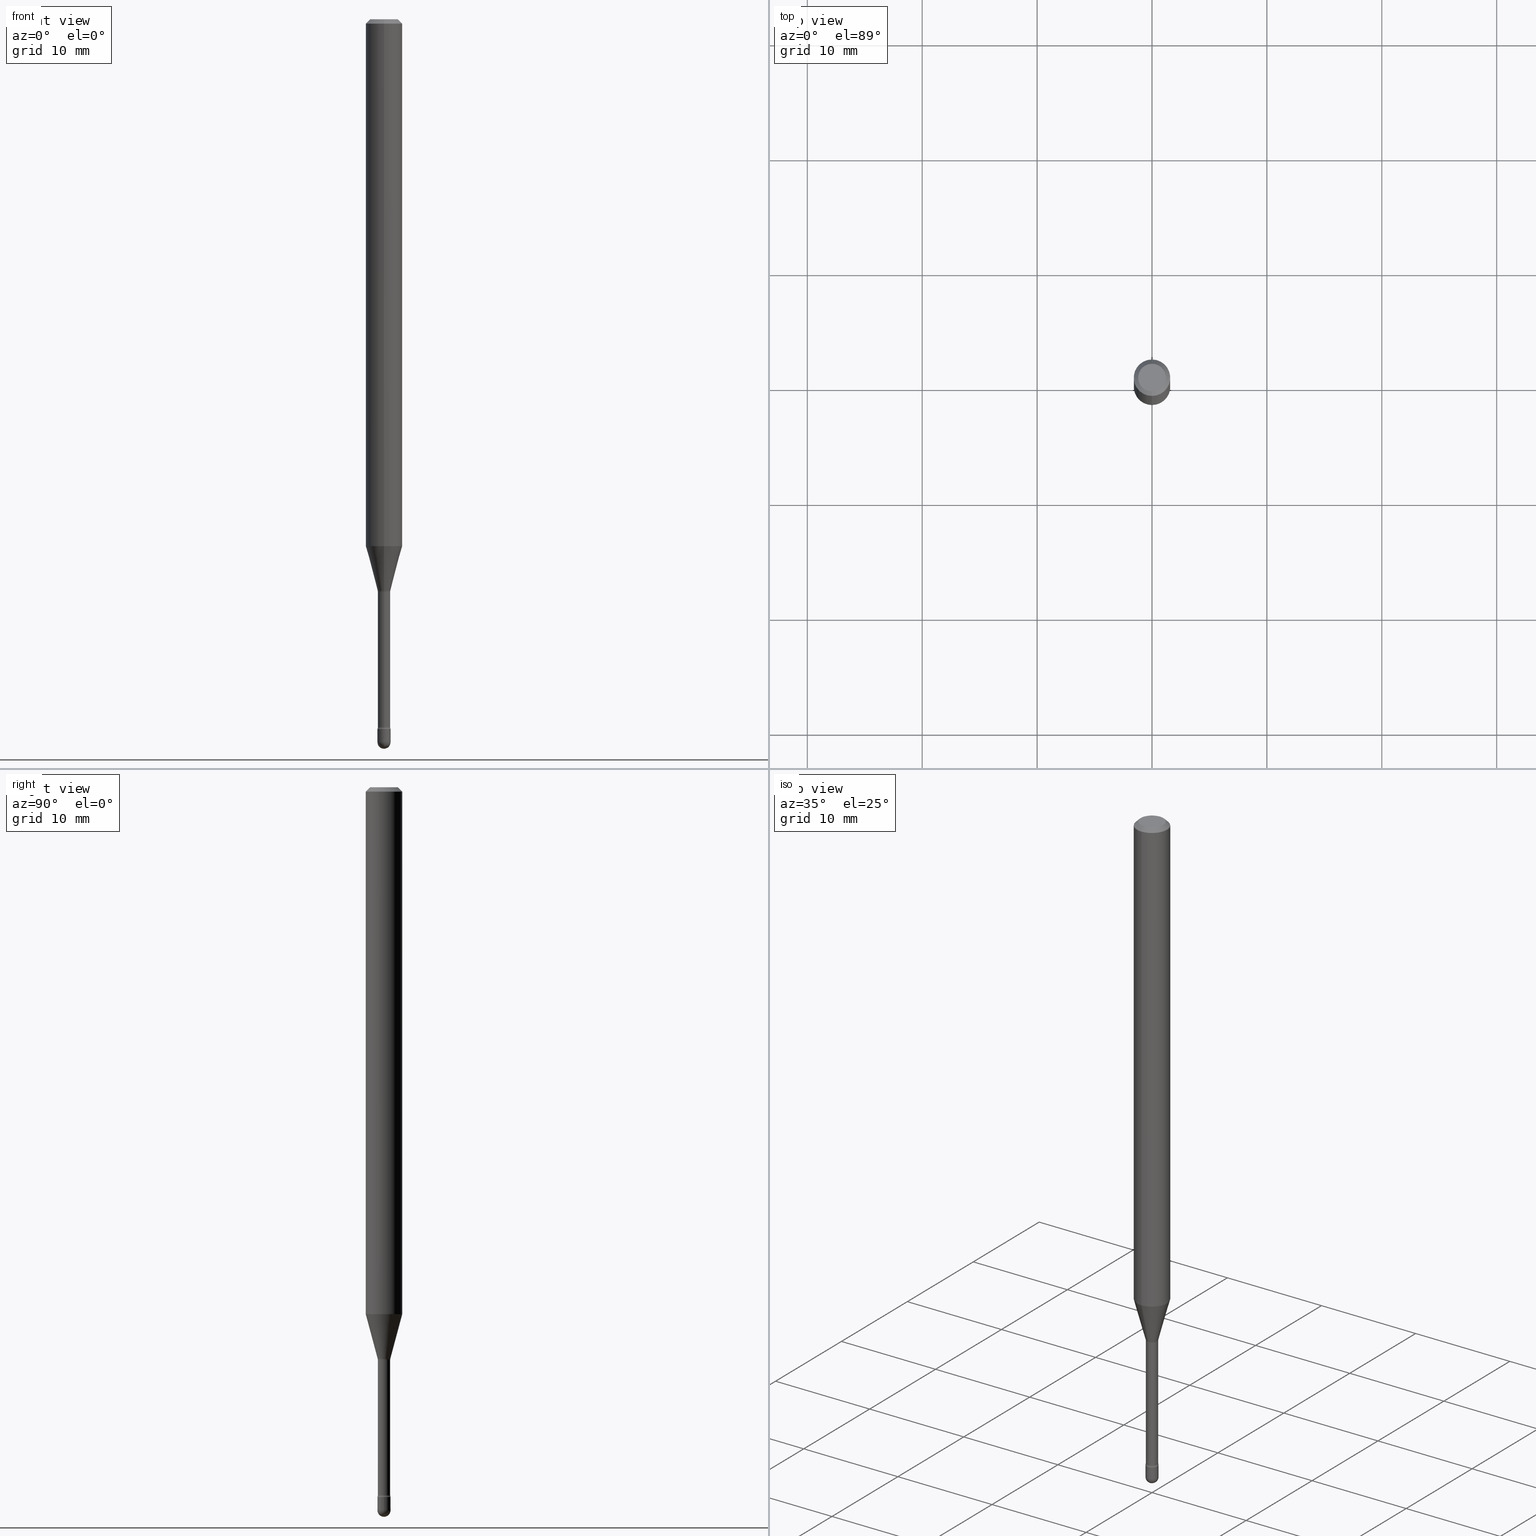
[diagram: canonical four-view strip — front | top / right | iso, engineering-drawing reading convention]
A machine part, canonical four-view strip (front | top / right | iso — engineering-drawing reading convention). The complete STEP part file that produces these views, byte-faithful:
ISO-10303-21;
HEADER;
FILE_DESCRIPTION (( 'STEP AP203' ),
    '1' );
FILE_NAME ('03894.STEP',
    '2024-04-09T21:00:28',
    ( '' ),
    ( '' ),
    'SwSTEP 2.0',
    'SolidWorks 2023',
    '' );
FILE_SCHEMA (( 'CONFIG_CONTROL_DESIGN' ));
ENDSEC;

DATA;
#1 = DIRECTION ( 'NONE',  ( 6.982962677686265922E-15, 1.000000000000000000, 0.000000000000000000 ) ) ;
#2 = LINE ( 'NONE', #167, #525 ) ;
#3 = CARTESIAN_POINT ( 'NONE',  ( 3.668137124916745339E-31, -5.237316644830958384E-17, -0.01500000000000008271 ) ) ;
#4 = ADVANCED_FACE ( 'NONE', ( #351 ), #124, .T. ) ;
#5 = EDGE_CURVE ( 'NONE', #511, #447, #478, .T. ) ;
#6 = CONICAL_SURFACE ( 'NONE', #393, 0.06250000000000000000, 0.7853981633974483900 ) ;
#7 = FACE_OUTER_BOUND ( 'NONE', #119, .T. ) ;
#8 = DIRECTION ( 'NONE',  ( -2.445424749944483382E-29, 3.491544429887286295E-15, 1.000000000000000000 ) ) ;
#9 = ORIENTED_EDGE ( 'NONE', *, *, #542, .F. ) ;
#10 = EDGE_LOOP ( 'NONE', ( #310, #257, #476, #229, #498 ) ) ;
#11 = FACE_OUTER_BOUND ( 'NONE', #507, .T. ) ;
#12 = ORIENTED_EDGE ( 'NONE', *, *, #373, .F. ) ;
#13 = PLANE ( 'NONE',  #526 ) ;
#14 = AXIS2_PLACEMENT_3D ( 'NONE', #313, #453, #543 ) ;
#15 = CC_DESIGN_APPROVAL ( #298, ( #250 ) ) ;
#16 =( CONVERSION_BASED_UNIT ( 'INCH', #104 ) LENGTH_UNIT ( ) NAMED_UNIT ( #459 ) );
#17 = VERTEX_POINT ( 'NONE', #528 ) ;
#18 = DATE_TIME_ROLE ( 'creation_date' ) ;
#19 = CARTESIAN_POINT ( 'NONE',  ( 1.571166602480017581E-16, 0.02249999999999136718, -2.477500000000000036 ) ) ;
#20 = VERTEX_POINT ( 'NONE', #402 ) ;
#21 = APPLICATION_PROTOCOL_DEFINITION ( 'international standard', 'config_control_design', 1994, #364 ) ;
#22 = DIRECTION ( 'NONE',  ( -2.445424749944483382E-29, 3.491544429887286295E-15, 1.000000000000000000 ) ) ;
#23 = AXIS2_PLACEMENT_3D ( 'NONE', #25, #300, #123 ) ;
#24 = APPROVAL ( #105, 'UNSPECIFIED' ) ;
#25 = CARTESIAN_POINT ( 'NONE',  ( 6.058648967323676636E-29, -8.650145016983893338E-15, -2.477500000000000036 ) ) ;
#26 = ORIENTED_EDGE ( 'NONE', *, *, #234, .T. ) ;
#27 = AXIS2_PLACEMENT_3D ( 'NONE', #359, #32, #85 ) ;
#28 = AXIS2_PLACEMENT_3D ( 'NONE', #405, #163, #113 ) ;
#29 = APPROVAL_PERSON_ORGANIZATION ( #554, #251, #424 ) ;
#30 = LINE ( 'NONE', #527, #565 ) ;
#31 = CARTESIAN_POINT ( 'NONE',  ( 2.990003359772577671E-16, 0.02166111260565713875, -1.958092501787273232 ) ) ;
#32 = DIRECTION ( 'NONE',  ( -2.445424749944483382E-29, 3.491544429887286295E-15, 1.000000000000000000 ) ) ;
#33 = DIRECTION ( 'NONE',  ( -6.982962677686266711E-15, -1.000000000000000000, 3.491544429887286295E-15 ) ) ;
#34 = CC_DESIGN_PERSON_AND_ORGANIZATION_ASSIGNMENT ( #473, #505, ( #250 ) ) ;
#35 = CARTESIAN_POINT ( 'NONE',  ( 6.058648967323676636E-29, -8.650145016983893338E-15, -2.477500000000000036 ) ) ;
#36 = DIRECTION ( 'NONE',  ( -1.807323732225326195E-15, -0.2588190451025176309, 0.9659258262890690894 ) ) ;
#37 = ORIENTED_EDGE ( 'NONE', *, *, #477, .T. ) ;
#38 = CARTESIAN_POINT ( 'NONE',  ( -4.364351673553916201E-16, -0.06250000000000000000, 6.962949257592015306E-16 ) ) ;
#39 = CARTESIAN_POINT ( 'NONE',  ( 4.797948141264463506E-29, -6.850198357710643082E-15, -1.961974787463811154 ) ) ;
#40 = CARTESIAN_POINT ( 'NONE',  ( -1.476896606330055594E-16, -0.02115000000000851962, -2.425780876267511932 ) ) ;
#41 = CARTESIAN_POINT ( 'NONE',  ( 4.788367866551310556E-29, -6.836766967819414724E-15, -1.958092501787273232 ) ) ;
#42 = ORIENTED_EDGE ( 'NONE', *, *, #443, .F. ) ;
#43 = CIRCLE ( 'NONE', #470, 0.01500000000000002373 ) ;
#44 = ORIENTED_EDGE ( 'NONE', *, *, #152, .F. ) ;
#45 = DIRECTION ( 'NONE',  ( -6.982962677686265922E-15, -1.000000000000000000, 3.491544429887285901E-15 ) ) ;
#46 = EDGE_CURVE ( 'NONE', #17, #363, #2, .T. ) ;
#47 = ORIENTED_EDGE ( 'NONE', *, *, #134, .T. ) ;
#48 = DIRECTION ( 'NONE',  ( 1.000000000000000000, -6.982962677686269866E-15, 0.000000000000000000 ) ) ;
#49 = EDGE_LOOP ( 'NONE', ( #125, #426, #497, #212, #376 ) ) ;
#50 = DIRECTION ( 'NONE',  ( 2.445424749944483382E-29, -3.491544429887286295E-15, -1.000000000000000000 ) ) ;
#51 = CARTESIAN_POINT ( 'NONE',  ( 0.000000000000000000, 0.000000000000000000, 0.000000000000000000 ) ) ;
#52 = DIRECTION ( 'NONE',  ( 1.000000000000000000, -6.982962677686266711E-15, 4.876176775795935793E-29 ) ) ;
#53 = AXIS2_PLACEMENT_3D ( 'NONE', #242, #439, #193 ) ;
#54 = APPROVAL_PERSON_ORGANIZATION ( #144, #24, #467 ) ;
#55 = ORIENTED_EDGE ( 'NONE', *, *, #216, .T. ) ;
#56 = CC_DESIGN_PERSON_AND_ORGANIZATION_ASSIGNMENT ( #336, #60, ( #231 ) ) ;
#57 = CARTESIAN_POINT ( 'NONE',  ( 6.058648967323676636E-29, -8.650145016983893338E-15, -2.477500000000000036 ) ) ;
#58 = EDGE_CURVE ( 'NONE', #20, #369, #88, .T. ) ;
#59 = EDGE_CURVE ( 'NONE', #69, #309, #293, .T. ) ;
#60 = PERSON_AND_ORGANIZATION_ROLE ( 'creator' ) ;
#61 = FACE_OUTER_BOUND ( 'NONE', #517, .T. ) ;
#62 = AXIS2_PLACEMENT_3D ( 'NONE', #425, #431, #218 ) ;
#63 = ADVANCED_FACE ( 'NONE', ( #7 ), #127, .T. ) ;
#64 = DIRECTION ( 'NONE',  ( -6.982962677686265922E-15, -1.000000000000000000, 3.491544429887285901E-15 ) ) ;
#65 = EDGE_LOOP ( 'NONE', ( #161, #423, #344, #258 ) ) ;
#66 = DIRECTION ( 'NONE',  ( -2.445424749944483382E-29, 3.491544429887286295E-15, 1.000000000000000000 ) ) ;
#67 = CALENDAR_DATE ( 2024, 9, 4 ) ;
#68 = ADVANCED_FACE ( 'NONE', ( #172 ), #131, .T. ) ;
#69 = VERTEX_POINT ( 'NONE', #292 ) ;
#70 = FACE_OUTER_BOUND ( 'NONE', #264, .T. ) ;
#71 = AXIS2_PLACEMENT_3D ( 'NONE', #384, #355, #306 ) ;
#72 = CC_DESIGN_APPROVAL ( #251, ( #231 ) ) ;
#73 = DIRECTION ( 'NONE',  ( -2.445424749944483382E-29, 3.491544429887286295E-15, 1.000000000000000000 ) ) ;
#74 = EDGE_CURVE ( 'NONE', #432, #363, #112, .T. ) ;
#75 = LINE ( 'NONE', #81, #557 ) ;
#76 = CARTESIAN_POINT ( 'NONE',  ( -1.512587408824631926E-16, -0.02166111260567081531, -1.958092501787273232 ) ) ;
#77 = DIRECTION ( 'NONE',  ( -6.982962677686266711E-15, -1.000000000000000000, 0.000000000000000000 ) ) ;
#78 = CIRCLE ( 'NONE', #122, 0.04749999999999999362 ) ;
#79 = FACE_OUTER_BOUND ( 'NONE', #249, .T. ) ;
#80 = DIRECTION ( 'NONE',  ( 6.982962677686265922E-15, 1.000000000000000000, -3.483106191921935554E-15 ) ) ;
#81 = CARTESIAN_POINT ( 'NONE',  ( -4.287811248607203282E-16, -0.06250000000000005551, -0.01499999999999986587 ) ) ;
#82 = DIRECTION ( 'NONE',  ( -2.445424749944483382E-29, 3.491544429887286295E-15, 1.000000000000000000 ) ) ;
#83 = EDGE_LOOP ( 'NONE', ( #9, #100, #256, #261 ) ) ;
#84 = COORDINATED_UNIVERSAL_TIME_OFFSET ( 5, 0, .BEHIND. ) ;
#85 = DIRECTION ( 'NONE',  ( -6.982962677686265922E-15, -1.000000000000000000, 3.491544429887286690E-15 ) ) ;
#86 = EDGE_CURVE ( 'NONE', #111, #69, #30, .T. ) ;
#87 = ORIENTED_EDGE ( 'NONE', *, *, #237, .T. ) ;
#88 = CIRCLE ( 'NONE', #428, 0.02114999999999999866 ) ;
#89 = CIRCLE ( 'NONE', #541, 0.01500000000000003240 ) ;
#90 = AXIS2_PLACEMENT_3D ( 'NONE', #471, #327, #52 ) ;
#91 = DIRECTION ( 'NONE',  ( -2.445424749944483382E-29, 3.491544429887286295E-15, 1.000000000000000000 ) ) ;
#92 = EDGE_LOOP ( 'NONE', ( #148, #87, #495, #42 ) ) ;
#93 = DIRECTION ( 'NONE',  ( -6.982962677686265922E-15, -1.000000000000000000, 3.491544429887285901E-15 ) ) ;
#94 = EDGE_LOOP ( 'NONE', ( #198, #26, #246, #318 ) ) ;
#95 = ORIENTED_EDGE ( 'NONE', *, *, #234, .F. ) ;
#96 = CONICAL_SURFACE ( 'NONE', #436, 0.02166111260566397703, 0.2617993877991496854 ) ;
#97 = EDGE_CURVE ( 'NONE', #136, #17, #135, .T. ) ;
#98 = PRODUCT_DEFINITION_SHAPE ( 'NONE', 'NONE',  #231 ) ;
#99 = DIRECTION ( 'NONE',  ( -6.982962677686265133E-15, -1.000000000000000000, 0.000000000000000000 ) ) ;
#100 = ORIENTED_EDGE ( 'NONE', *, *, #152, .T. ) ;
#101 = CARTESIAN_POINT ( 'NONE',  ( 4.788367866551310556E-29, -6.836766967819414724E-15, -1.958092501787273232 ) ) ;
#102 = CALENDAR_DATE ( 2024, 9, 4 ) ;
#103 = EDGE_CURVE ( 'NONE', #511, #20, #43, .T. ) ;
#104 = LENGTH_MEASURE_WITH_UNIT ( LENGTH_MEASURE( 0.02539999999999999897 ), #380 );
#105 = APPROVAL_STATUS ( 'not_yet_approved' ) ;
#106 = CIRCLE ( 'NONE', #219, 0.06250000000000000000 ) ;
#107 = AXIS2_PLACEMENT_3D ( 'NONE', #182, #236, #331 ) ;
#108 = DIRECTION ( 'NONE',  ( -2.445468806185136597E-29, 3.491481338843145583E-15, 1.000000000000000000 ) ) ;
#109 = DATE_AND_TIME ( #520, #396 ) ;
#110 = DIRECTION ( 'NONE',  ( -2.445424749944483382E-29, 3.491544429887286295E-15, 1.000000000000000000 ) ) ;
#111 = VERTEX_POINT ( 'NONE', #486 ) ;
#112 = LINE ( 'NONE', #401, #365 ) ;
#113 = DIRECTION ( 'NONE',  ( 1.000000000000000000, -6.982962677686266711E-15, 4.876176775795935793E-29 ) ) ;
#114 = ORIENTED_EDGE ( 'NONE', *, *, #422, .T. ) ;
#115 = DIRECTION ( 'NONE',  ( 1.000000000000000000, -6.982962677686269866E-15, 0.000000000000000000 ) ) ;
#116 = CARTESIAN_POINT ( 'NONE',  ( 4.797861704031071659E-29, -6.850322140748562007E-15, -1.961974787463811154 ) ) ;
#117 = CARTESIAN_POINT ( 'NONE',  ( 1.502797886133206648E-16, 0.02114999999999314997, -1.961974787463811154 ) ) ;
#118 = CARTESIAN_POINT ( 'NONE',  ( -1.476896606330647239E-16, -0.02115000000000002642, 5.519195635833622872E-16 ) ) ;
#119 = EDGE_LOOP ( 'NONE', ( #114, #388, #504, #323 ) ) ;
#120 = CC_DESIGN_PERSON_AND_ORGANIZATION_ASSIGNMENT ( #330, #146, ( #409 ) ) ;
#121 = DATE_AND_TIME ( #153, #419 ) ;
#122 = AXIS2_PLACEMENT_3D ( 'NONE', #151, #8, #33 ) ;
#123 = DIRECTION ( 'NONE',  ( -7.105427357600999492E-15, -1.000000000000000000, 0.000000000000000000 ) ) ;
#124 = CYLINDRICAL_SURFACE ( 'NONE', #27, 0.06250000000000000000 ) ;
#125 = ORIENTED_EDGE ( 'NONE', *, *, #547, .T. ) ;
#126 = DIRECTION ( 'NONE',  ( 2.445424749944483101E-29, -3.491544429887286295E-15, -1.000000000000000000 ) ) ;
#127 = CYLINDRICAL_SURFACE ( 'NONE', #564, 0.02115000000000002642 ) ;
#128 = CC_DESIGN_DATE_AND_TIME_ASSIGNMENT ( #149, #18, ( #231 ) ) ;
#129 = ORIENTED_EDGE ( 'NONE', *, *, #542, .T. ) ;
#130 = FACE_OUTER_BOUND ( 'NONE', #353, .T. ) ;
#131 = CYLINDRICAL_SURFACE ( 'NONE', #247, 0.02115000000000002642 ) ;
#132 = ORIENTED_EDGE ( 'NONE', *, *, #216, .F. ) ;
#133 = DIRECTION ( 'NONE',  ( 6.982962677686265922E-15, 1.000000000000000000, 0.000000000000000000 ) ) ;
#134 = EDGE_CURVE ( 'NONE', #363, #277, #106, .T. ) ;
#135 = CIRCLE ( 'NONE', #269, 0.06250000000000000000 ) ;
#136 = VERTEX_POINT ( 'NONE', #392 ) ;
#137 = EDGE_CURVE ( 'NONE', #461, #277, #75, .T. ) ;
#138 = ORIENTED_EDGE ( 'NONE', *, *, #165, .F. ) ;
#139 = AXIS2_PLACEMENT_3D ( 'NONE', #252, #450, #133 ) ;
#140 = CARTESIAN_POINT ( 'NONE',  ( 5.947272991864984194E-29, -8.491436053485880598E-15, -2.432000000000000384 ) ) ;
#141 = EDGE_CURVE ( 'NONE', #395, #358, #444, .T. ) ;
#142 = APPLICATION_PROTOCOL_DEFINITION ( 'international standard', 'config_control_design', 1994, #155 ) ;
#143 = CARTESIAN_POINT ( 'NONE',  ( 5.932064592766590079E-29, -8.469721706658931478E-15, -2.425780876267511932 ) ) ;
#144 = PERSON_AND_ORGANIZATION ( #515, #534 ) ;
#145 = DIRECTION ( 'NONE',  ( -6.982962677686265133E-15, -1.000000000000000000, 0.000000000000000000 ) ) ;
#146 = PERSON_AND_ORGANIZATION_ROLE ( 'creator' ) ;
#147 = DATE_AND_TIME ( #102, #209 ) ;
#148 = ORIENTED_EDGE ( 'NONE', *, *, #5, .T. ) ;
#149 = DATE_AND_TIME ( #374, #271 ) ;
#150 = ORIENTED_EDGE ( 'NONE', *, *, #477, .F. ) ;
#151 = CARTESIAN_POINT ( 'NONE',  ( 2.023232495864555534E-45, -2.889346375227927502E-31, -8.274403524694864429E-17 ) ) ;
#152 = EDGE_CURVE ( 'NONE', #361, #312, #207, .T. ) ;
#153 = CALENDAR_DATE ( 2024, 9, 4 ) ;
#154 = CARTESIAN_POINT ( 'NONE',  ( 5.947272991864984194E-29, -8.491436053485880598E-15, -2.432000000000000384 ) ) ;
#155 = APPLICATION_CONTEXT ( 'configuration controlled 3d designs of mechanical parts and assemblies' ) ;
#156 = PRODUCT_RELATED_PRODUCT_CATEGORY ( 'detail', '', ( #510 ) ) ;
#157 = DIRECTION ( 'NONE',  ( -6.982962677686265133E-15, -1.000000000000000000, 0.000000000000000000 ) ) ;
#158 = AXIS2_PLACEMENT_3D ( 'NONE', #454, #254, #407 ) ;
#159 = VECTOR ( 'NONE', #245, 39.37007874015748143 ) ;
#160 = CARTESIAN_POINT ( 'NONE',  ( 2.568611989773359353E-16, 0.03614999999999159164, -2.425780876267511932 ) ) ;
#161 = ORIENTED_EDGE ( 'NONE', *, *, #46, .F. ) ;
#162 = COORDINATED_UNIVERSAL_TIME_OFFSET ( 5, 0, .BEHIND. ) ;
#163 = DIRECTION ( 'NONE',  ( -2.445468806185136597E-29, 3.491481338843145583E-15, 1.000000000000000000 ) ) ;
#164 = DIRECTION ( 'NONE',  ( -2.445468806185136877E-29, 3.491481338843145188E-15, 1.000000000000000000 ) ) ;
#165 = EDGE_CURVE ( 'NONE', #536, #341, #559, .T. ) ;
#166 = SPHERICAL_SURFACE ( 'NONE', #377, 0.02250000000000005121 ) ;
#167 = CARTESIAN_POINT ( 'NONE',  ( 4.440892098500625669E-16, 0.06250000000000000000, 2.598518720232906451E-16 ) ) ;
#168 = CIRCLE ( 'NONE', #259, 0.02249999999999999570 ) ;
#169 = DIRECTION ( 'NONE',  ( -2.445424749944483382E-29, 3.491544429887286295E-15, 1.000000000000000000 ) ) ;
#170 = DIRECTION ( 'NONE',  ( 2.445424749944483382E-29, -3.491544429887286295E-15, -1.000000000000000000 ) ) ;
#171 = CARTESIAN_POINT ( 'NONE',  ( 5.932171463552647132E-29, -8.469568661610591604E-15, -2.425780876267511932 ) ) ;
#172 = FACE_OUTER_BOUND ( 'NONE', #204, .T. ) ;
#173 = ORIENTED_EDGE ( 'NONE', *, *, #103, .T. ) ;
#174 = CARTESIAN_POINT ( 'NONE',  ( -4.364351673553912750E-16, -0.06250000000000005551, -0.01499999999999986587 ) ) ;
#175 = CIRCLE ( 'NONE', #337, 0.06250000000000000000 ) ;
#176 = ADVANCED_FACE ( 'NONE', ( #494 ), #253, .T. ) ;
#177 = SPHERICAL_SURFACE ( 'NONE', #139, 0.02250000000000005121 ) ;
#178 = APPROVAL_STATUS ( 'not_yet_approved' ) ;
#179 = ORIENTED_EDGE ( 'NONE', *, *, #58, .T. ) ;
#180 = CARTESIAN_POINT ( 'NONE',  ( 4.788367866551310556E-29, -6.836766967819414724E-15, -1.958092501787273232 ) ) ;
#181 =( NAMED_UNIT ( * ) PLANE_ANGLE_UNIT ( ) SI_UNIT ( $, .RADIAN. ) );
#182 = CARTESIAN_POINT ( 'NONE',  ( -1.169113584055446105E-44, 1.669184350826100908E-30, 4.780733988912460139E-16 ) ) ;
#183 = EDGE_CURVE ( 'NONE', #214, #20, #530, .T. ) ;
#184 = APPROVAL_DATE_TIME ( #281, #24 ) ;
#185 = AXIS2_PLACEMENT_3D ( 'NONE', #35, #197, #115 ) ;
#186 = FACE_OUTER_BOUND ( 'NONE', #412, .T. ) ;
#187 = AXIS2_PLACEMENT_3D ( 'NONE', #101, #556, #278 ) ;
#188 = CARTESIAN_POINT ( 'NONE',  ( 4.797861704031071659E-29, -6.850322140748562007E-15, -1.961974787463811154 ) ) ;
#189 = DIRECTION ( 'NONE',  ( -6.982962677686266711E-15, -1.000000000000000000, 0.000000000000000000 ) ) ;
#190 = AXIS2_PLACEMENT_3D ( 'NONE', #360, #108, #488 ) ;
#191 = ADVANCED_FACE ( 'NONE', ( #79 ), #166, .T. ) ;
#192 = DIRECTION ( 'NONE',  ( -2.445424749944483382E-29, 3.491544429887286295E-15, 1.000000000000000000 ) ) ;
#193 = DIRECTION ( 'NONE',  ( -6.982962677686266711E-15, -1.000000000000000000, 0.000000000000000000 ) ) ;
#194 = DIRECTION ( 'NONE',  ( -6.982962677686266711E-15, -1.000000000000000000, 0.000000000000000000 ) ) ;
#195 = ORIENTED_EDGE ( 'NONE', *, *, #449, .T. ) ;
#196 = VECTOR ( 'NONE', #66, 39.37007874015748143 ) ;
#197 = DIRECTION ( 'NONE',  ( -2.445468806185136597E-29, 3.491481338843145583E-15, 1.000000000000000000 ) ) ;
#198 = ORIENTED_EDGE ( 'NONE', *, *, #237, .F. ) ;
#199 = DIRECTION ( 'NONE',  ( -1.000000000000000000, 6.982962677686265922E-15, -4.883557194083111780E-29 ) ) ;
#200 = DIRECTION ( 'NONE',  ( -1.000000000000000000, 6.982962677686265922E-15, -4.883557194083112340E-29 ) ) ;
#201 = DIRECTION ( 'NONE',  ( -6.982962677686266711E-15, -1.000000000000000000, 0.000000000000000000 ) ) ;
#202 = CARTESIAN_POINT ( 'NONE',  ( 0.02249999999999999917, -8.648399276314471045E-15, -2.432000000000000384 ) ) ;
#203 = DIRECTION ( 'NONE',  ( -1.000000000000000000, 6.982962677686265922E-15, -4.883557194083112340E-29 ) ) ;
#204 = EDGE_LOOP ( 'NONE', ( #460, #320, #549, #150 ) ) ;
#205 = AXIS2_PLACEMENT_3D ( 'NONE', #41, #538, #201 ) ;
#206 = ORIENTED_EDGE ( 'NONE', *, *, #5, .F. ) ;
#207 = CIRCLE ( 'NONE', #23, 0.02250000000000005121 ) ;
#208 = FACE_OUTER_BOUND ( 'NONE', #83, .T. ) ;
#209 = LOCAL_TIME ( 17, 0, 28.00000000000000000, #84 ) ;
#210 = ORIENTED_EDGE ( 'NONE', *, *, #503, .T. ) ;
#211 = CC_DESIGN_DATE_AND_TIME_ASSIGNMENT ( #109, #288, ( #250 ) ) ;
#212 = ORIENTED_EDGE ( 'NONE', *, *, #368, .F. ) ;
#213 = FACE_OUTER_BOUND ( 'NONE', #304, .T. ) ;
#214 = VERTEX_POINT ( 'NONE', #40 ) ;
#215 = CARTESIAN_POINT ( 'NONE',  ( 3.316907271900976096E-16, 0.04749999999999999362, 3.181632140250257322E-17 ) ) ;
#216 = EDGE_CURVE ( 'NONE', #341, #558, #506, .T. ) ;
#217 = FACE_OUTER_BOUND ( 'NONE', #413, .T. ) ;
#218 = DIRECTION ( 'NONE',  ( 6.982962677686265922E-15, 1.000000000000000000, 0.000000000000000000 ) ) ;
#219 = AXIS2_PLACEMENT_3D ( 'NONE', #303, #532, #451 ) ;
#220 = CIRCLE ( 'NONE', #492, 0.02114999999999999866 ) ;
#221 = ORIENTED_EDGE ( 'NONE', *, *, #421, .T. ) ;
#222 = DIRECTION ( 'NONE',  ( -2.445468806185136597E-29, 3.491481338843145583E-15, 1.000000000000000000 ) ) ;
#223 = DIRECTION ( 'NONE',  ( -2.445424749944483382E-29, 3.491544429887286295E-15, 1.000000000000000000 ) ) ;
#224 = COORDINATED_UNIVERSAL_TIME_OFFSET ( 5, 0, .BEHIND. ) ;
#225 = PERSON_AND_ORGANIZATION ( #515, #534 ) ;
#226 = CIRCLE ( 'NONE', #408, 0.04749999999999999362 ) ;
#227 = CONICAL_SURFACE ( 'NONE', #187, 0.02166111260566397703, 0.2617993877991496854 ) ;
#228 = EDGE_CURVE ( 'NONE', #17, #136, #175, .T. ) ;
#229 = ORIENTED_EDGE ( 'NONE', *, *, #368, .T. ) ;
#230 = FACE_OUTER_BOUND ( 'NONE', #49, .T. ) ;
#231 = PRODUCT_DEFINITION ( 'UNKNOWN', '', #409, #548 ) ;
#232 = ORIENTED_EDGE ( 'NONE', *, *, #438, .T. ) ;
#233 = CARTESIAN_POINT ( 'NONE',  ( 2.568611989773242010E-16, 0.03614999999999315289, -1.961974787463811154 ) ) ;
#234 = EDGE_CURVE ( 'NONE', #447, #511, #455, .T. ) ;
#235 = PERSON_AND_ORGANIZATION ( #515, #534 ) ;
#236 = DIRECTION ( 'NONE',  ( -2.445424749944483382E-29, 3.491544429887286295E-15, 1.000000000000000000 ) ) ;
#237 = EDGE_CURVE ( 'NONE', #447, #17, #562, .T. ) ;
#238 = ORIENTED_EDGE ( 'NONE', *, *, #438, .F. ) ;
#239 = AXIS2_PLACEMENT_3D ( 'NONE', #39, #91, #45 ) ;
#240 =( GEOMETRIC_REPRESENTATION_CONTEXT ( 3 ) GLOBAL_UNCERTAINTY_ASSIGNED_CONTEXT ( ( #332 ) ) GLOBAL_UNIT_ASSIGNED_CONTEXT ( ( #16, #181, #546 ) ) REPRESENTATION_CONTEXT ( 'NONE', 'WORKASPACE' ) );
#241 = ADVANCED_FACE ( 'NONE', ( #493 ), #13, .F. ) ;
#242 = CARTESIAN_POINT ( 'NONE',  ( 4.788367866551310556E-29, -6.836766967819414724E-15, -1.958092501787273232 ) ) ;
#243 = ADVANCED_FACE ( 'NONE', ( #418 ), #319, .F. ) ;
#244 = DIRECTION ( 'NONE',  ( -4.851104656540964275E-15, -0.7071067811865500152, -0.7071067811865450192 ) ) ;
#245 = DIRECTION ( 'NONE',  ( 1.839019923739596371E-15, 0.2588190451025244032, 0.9659258262890673130 ) ) ;
#246 = ORIENTED_EDGE ( 'NONE', *, *, #443, .T. ) ;
#247 = AXIS2_PLACEMENT_3D ( 'NONE', #314, #362, #566 ) ;
#248 = AXIS2_PLACEMENT_3D ( 'NONE', #160, #397, #441 ) ;
#249 = EDGE_LOOP ( 'NONE', ( #44, #129, #291, #391 ) ) ;
#250 = SECURITY_CLASSIFICATION ( '', '', #322 ) ;
#251 = APPROVAL ( #420, 'UNSPECIFIED' ) ;
#252 = CARTESIAN_POINT ( 'NONE',  ( 6.058648967323676636E-29, -8.650145016983893338E-15, -2.477500000000000036 ) ) ;
#253 = CYLINDRICAL_SURFACE ( 'NONE', #28, 0.02249999999999999917 ) ;
#254 = DIRECTION ( 'NONE',  ( -2.445468806185136597E-29, 3.491481338843145583E-15, 1.000000000000000000 ) ) ;
#255 = EDGE_CURVE ( 'NONE', #312, #395, #168, .T. ) ;
#256 = ORIENTED_EDGE ( 'NONE', *, *, #400, .F. ) ;
#257 = ORIENTED_EDGE ( 'NONE', *, *, #400, .T. ) ;
#258 = ORIENTED_EDGE ( 'NONE', *, *, #134, .F. ) ;
#259 = AXIS2_PLACEMENT_3D ( 'NONE', #321, #540, #48 ) ;
#260 = CIRCLE ( 'NONE', #501, 0.02249999999999999917 ) ;
#261 = ORIENTED_EDGE ( 'NONE', *, *, #547, .F. ) ;
#262 = CARTESIAN_POINT ( 'NONE',  ( -1.598721155459620648E-16, -0.02250000000000867278, -2.477500000000000036 ) ) ;
#263 = ADVANCED_FACE ( 'NONE', ( #217 ), #317, .T. ) ;
#264 = EDGE_LOOP ( 'NONE', ( #238, #544, #372, #382 ) ) ;
#265 = DIRECTION ( 'NONE',  ( -6.982962677686265922E-15, -1.000000000000000000, 3.491544429887286295E-15 ) ) ;
#266 = ADVANCED_FACE ( 'NONE', ( #208 ), #177, .T. ) ;
#267 = ORIENTED_EDGE ( 'NONE', *, *, #563, .F. ) ;
#268 = FACE_OUTER_BOUND ( 'NONE', #92, .T. ) ;
#269 = AXIS2_PLACEMENT_3D ( 'NONE', #356, #352, #308 ) ;
#270 = MECHANICAL_CONTEXT ( 'NONE', #155, 'mechanical' ) ;
#271 = LOCAL_TIME ( 17, 0, 28.00000000000000000, #275 ) ;
#272 = DIRECTION ( 'NONE',  ( -2.445468806185136597E-29, 3.491481338843145583E-15, 1.000000000000000000 ) ) ;
#273 = DIRECTION ( 'NONE',  ( -6.982962677686266711E-15, -1.000000000000000000, 0.000000000000000000 ) ) ;
#274 = DIRECTION ( 'NONE',  ( 0.000000000000000000, 0.000000000000000000, 1.000000000000000000 ) ) ;
#275 = COORDINATED_UNIVERSAL_TIME_OFFSET ( 5, 0, .BEHIND. ) ;
#276 = DIRECTION ( 'NONE',  ( 1.000000000000000000, -6.982962677686269077E-15, 0.000000000000000000 ) ) ;
#277 = VERTEX_POINT ( 'NONE', #174 ) ;
#278 = DIRECTION ( 'NONE',  ( -6.982962677686266711E-15, -1.000000000000000000, 0.000000000000000000 ) ) ;
#279 = ORIENTED_EDGE ( 'NONE', *, *, #421, .F. ) ;
#280 = CC_DESIGN_PERSON_AND_ORGANIZATION_ASSIGNMENT ( #225, #430, ( #510 ) ) ;
#281 = DATE_AND_TIME ( #67, #284 ) ;
#282 = CIRCLE ( 'NONE', #417, 0.01500000000000000638 ) ;
#283 = CARTESIAN_POINT ( 'NONE',  ( -1.512587408824631926E-16, -0.02166111260567081531, -1.958092501787273232 ) ) ;
#284 = LOCAL_TIME ( 17, 0, 28.00000000000000000, #224 ) ;
#285 = ORIENTED_EDGE ( 'NONE', *, *, #485, .T. ) ;
#286 = MANIFOLD_SOLID_BREP ( 'Body-Move/Copy2[2]', #406 ) ;
#287 = CARTESIAN_POINT ( 'NONE',  ( 3.668137124916745339E-31, -5.237316644830958384E-17, -0.01500000000000008271 ) ) ;
#288 = DATE_TIME_ROLE ( 'classification_date' ) ;
#289 = CYLINDRICAL_SURFACE ( 'NONE', #90, 0.02249999999999999917 ) ;
#290 = CC_DESIGN_PERSON_AND_ORGANIZATION_ASSIGNMENT ( #334, #513, ( #409 ) ) ;
#291 = ORIENTED_EDGE ( 'NONE', *, *, #141, .F. ) ;
#292 = CARTESIAN_POINT ( 'NONE',  ( -0.02249999999999999917, -8.410841700979189875E-15, -2.432000000000000384 ) ) ;
#293 = CIRCLE ( 'NONE', #158, 0.02249999999999999917 ) ;
#294 = AXIS2_PLACEMENT_3D ( 'NONE', #404, #415, #265 ) ;
#295 = AXIS2_PLACEMENT_3D ( 'NONE', #555, #474, #64 ) ;
#296 = ADVANCED_FACE ( 'NONE', ( #213 ), #347, .F. ) ;
#297 = DIRECTION ( 'NONE',  ( 4.937700262164548042E-15, 0.7071067811865451302, -0.7071067811865499042 ) ) ;
#298 = APPROVAL ( #178, 'UNSPECIFIED' ) ;
#299 = MANIFOLD_SOLID_BREP ( 'Body-Move/Copy2[1]', #324 ) ;
#300 = DIRECTION ( 'NONE',  ( -1.000000000000000000, 7.105427357601001070E-15, -4.926315508542082329E-29 ) ) ;
#301 = ORIENTED_EDGE ( 'NONE', *, *, #385, .F. ) ;
#302 = CARTESIAN_POINT ( 'NONE',  ( 0.02249999999999999570, -8.727830476773152219E-15, -2.477500000000000036 ) ) ;
#303 = CARTESIAN_POINT ( 'NONE',  ( 3.668137124916745339E-31, -5.237316644830958384E-17, -0.01500000000000008271 ) ) ;
#304 = EDGE_LOOP ( 'NONE', ( #95, #221, #37, #442 ) ) ;
#305 = VECTOR ( 'NONE', #164, 39.37007874015748143 ) ;
#306 = DIRECTION ( 'NONE',  ( -6.982962677686266711E-15, -1.000000000000000000, 0.000000000000000000 ) ) ;
#307 = AXIS2_PLACEMENT_3D ( 'NONE', #57, #222, #378 ) ;
#308 = DIRECTION ( 'NONE',  ( -6.982962677686265922E-15, -1.000000000000000000, 4.370956789862821150E-15 ) ) ;
#309 = VERTEX_POINT ( 'NONE', #202 ) ;
#310 = ORIENTED_EDGE ( 'NONE', *, *, #86, .F. ) ;
#311 = DIRECTION ( 'NONE',  ( -2.445424749944483382E-29, 3.491544429887286295E-15, 1.000000000000000000 ) ) ;
#312 = VERTEX_POINT ( 'NONE', #262 ) ;
#313 = CARTESIAN_POINT ( 'NONE',  ( 4.797948141264463506E-29, -6.850198357710643082E-15, -1.961974787463811154 ) ) ;
#314 = CARTESIAN_POINT ( 'NONE',  ( -1.169113584055446105E-44, 1.669184350826100908E-30, 4.780733988912460139E-16 ) ) ;
#315 = ADVANCED_FACE ( 'NONE', ( #11 ), #518, .F. ) ;
#316 = ORIENTED_EDGE ( 'NONE', *, *, #74, .T. ) ;
#317 = CONICAL_SURFACE ( 'NONE', #429, 0.06250000000000000000, 0.7853981633974483900 ) ;
#318 = ORIENTED_EDGE ( 'NONE', *, *, #228, .F. ) ;
#319 = PLANE ( 'NONE',  #294 ) ;
#320 = ORIENTED_EDGE ( 'NONE', *, *, #563, .T. ) ;
#321 = CARTESIAN_POINT ( 'NONE',  ( 6.058648967323676636E-29, -8.650145016983893338E-15, -2.477500000000000036 ) ) ;
#322 = SECURITY_CLASSIFICATION_LEVEL ( 'unclassified' ) ;
#323 = ORIENTED_EDGE ( 'NONE', *, *, #183, .F. ) ;
#324 = CLOSED_SHELL ( 'NONE', ( #537, #266, #469, #191, #176 ) ) ;
#325 = CIRCLE ( 'NONE', #533, 0.06250000000000000000 ) ;
#326 = DIRECTION ( 'NONE',  ( 1.000000000000000000, 0.000000000000000000, 0.000000000000000000 ) ) ;
#327 = DIRECTION ( 'NONE',  ( -2.445468806185136597E-29, 3.491481338843145583E-15, 1.000000000000000000 ) ) ;
#328 = FACE_OUTER_BOUND ( 'NONE', #561, .T. ) ;
#329 = CARTESIAN_POINT ( 'NONE',  ( -1.571166602478815307E-16, -0.02250000000000849237, -2.432000000000000384 ) ) ;
#330 = PERSON_AND_ORGANIZATION ( #515, #534 ) ;
#331 = DIRECTION ( 'NONE',  ( -6.982962677686265922E-15, -1.000000000000000000, 3.491544429887286690E-15 ) ) ;
#332 = UNCERTAINTY_MEASURE_WITH_UNIT (LENGTH_MEASURE( 1.000000000000000082E-05 ), #16, 'distance_accuracy_value', 'NONE');
#333 = CARTESIAN_POINT ( 'NONE',  ( 4.440892098501069896E-16, 0.06249999999999995143, -0.01500000000000030129 ) ) ;
#334 = PERSON_AND_ORGANIZATION ( #515, #534 ) ;
#335 = ADVANCED_FACE ( 'NONE', ( #130 ), #357, .F. ) ;
#336 = PERSON_AND_ORGANIZATION ( #515, #534 ) ;
#337 = AXIS2_PLACEMENT_3D ( 'NONE', #346, #73, #524 ) ;
#338 = CARTESIAN_POINT ( 'NONE',  ( 1.502797886132613524E-16, 0.02115000000000002642, 4.042272341991298886E-16 ) ) ;
#339 = CC_DESIGN_APPROVAL ( #24, ( #409 ) ) ;
#340 = CARTESIAN_POINT ( 'NONE',  ( -1.169113584055446105E-44, 1.669184350826100908E-30, 4.780733988912460139E-16 ) ) ;
#341 = VERTEX_POINT ( 'NONE', #367 ) ;
#342 = LINE ( 'NONE', #529, #305 ) ;
#343 = ADVANCED_FACE ( 'NONE', ( #268 ), #96, .T. ) ;
#344 = ORIENTED_EDGE ( 'NONE', *, *, #373, .T. ) ;
#345 = DIRECTION ( 'NONE',  ( -2.445424749944483382E-29, 3.491544429887286295E-15, 1.000000000000000000 ) ) ;
#346 = CARTESIAN_POINT ( 'NONE',  ( 4.415653826668632896E-29, -6.304610895577692645E-15, -1.805679699107027192 ) ) ;
#347 = TOROIDAL_SURFACE ( 'NONE', #239, 0.03615000000000000158, 0.01500000000000002720 ) ;
#348 = CC_DESIGN_SECURITY_CLASSIFICATION ( #250, ( #409 ) ) ;
#349 = APPROVAL_DATE_TIME ( #121, #298 ) ;
#350 = DIRECTION ( 'NONE',  ( -2.445468806185136877E-29, 3.491481338843145188E-15, 1.000000000000000000 ) ) ;
#351 = FACE_OUTER_BOUND ( 'NONE', #65, .T. ) ;
#352 = DIRECTION ( 'NONE',  ( -2.445424749944483382E-29, 3.491544429887286295E-15, 1.000000000000000000 ) ) ;
#353 = EDGE_LOOP ( 'NONE', ( #279, #206, #173, #179 ) ) ;
#354 = ADVANCED_BREP_SHAPE_REPRESENTATION ( '03894', ( #299, #286, #552 ), #240 ) ;
#355 = DIRECTION ( 'NONE',  ( -2.445424749944483382E-29, 3.491544429887286295E-15, 1.000000000000000000 ) ) ;
#356 = CARTESIAN_POINT ( 'NONE',  ( 4.415653826668632896E-29, -6.304610895577692645E-15, -1.805679699107027192 ) ) ;
#357 = TOROIDAL_SURFACE ( 'NONE', #14, 0.03615000000000000158, 0.01500000000000002720 ) ;
#358 = VERTEX_POINT ( 'NONE', #19 ) ;
#359 = CARTESIAN_POINT ( 'NONE',  ( -1.169113584055446105E-44, 1.669184350826100908E-30, 4.780733988912460139E-16 ) ) ;
#360 = CARTESIAN_POINT ( 'NONE',  ( 6.058648967323676636E-29, -8.650145016983893338E-15, -2.477500000000000036 ) ) ;
#361 = VERTEX_POINT ( 'NONE', #553 ) ;
#362 = DIRECTION ( 'NONE',  ( -2.445424749944483382E-29, 3.491544429887286295E-15, 1.000000000000000000 ) ) ;
#363 = VERTEX_POINT ( 'NONE', #333 ) ;
#364 = APPLICATION_CONTEXT ( 'configuration controlled 3d designs of mechanical parts and assemblies' ) ;
#365 = VECTOR ( 'NONE', #297, 39.37007874015748143 ) ;
#366 = AXIS2_PLACEMENT_3D ( 'NONE', #171, #169, #93 ) ;
#367 = CARTESIAN_POINT ( 'NONE',  ( 1.598721155460820456E-16, 0.02249999999999151290, -2.432000000000000384 ) ) ;
#368 = EDGE_CURVE ( 'NONE', #395, #309, #342, .T. ) ;
#369 = VERTEX_POINT ( 'NONE', #117 ) ;
#370 = APPROVAL_DATE_TIME ( #147, #251 ) ;
#371 = CYLINDRICAL_SURFACE ( 'NONE', #107, 0.06250000000000000000 ) ;
#372 = ORIENTED_EDGE ( 'NONE', *, *, #411, .T. ) ;
#373 = EDGE_CURVE ( 'NONE', #136, #277, #410, .T. ) ;
#374 = CALENDAR_DATE ( 2024, 9, 4 ) ;
#375 = CARTESIAN_POINT ( 'NONE',  ( -3.773273898774340269E-16, -0.04749999999999999362, 8.310432517269743649E-17 ) ) ;
#376 = ORIENTED_EDGE ( 'NONE', *, *, #141, .T. ) ;
#377 = AXIS2_PLACEMENT_3D ( 'NONE', #389, #199, #1 ) ;
#378 = DIRECTION ( 'NONE',  ( 1.000000000000000000, -6.982962677686269866E-15, 0.000000000000000000 ) ) ;
#379 = APPROVAL_PERSON_ORGANIZATION ( #235, #298, #523 ) ;
#380 =( LENGTH_UNIT ( ) NAMED_UNIT ( * ) SI_UNIT ( $, .METRE. ) );
#381 = CARTESIAN_POINT ( 'NONE',  ( 1.550759520797014538E-16, 0.02114999999999158178, -2.425780876267511932 ) ) ;
#382 = ORIENTED_EDGE ( 'NONE', *, *, #74, .F. ) ;
#383 = CARTESIAN_POINT ( 'NONE',  ( 5.947380136642253002E-29, -8.491282616066530991E-15, -2.432000000000000384 ) ) ;
#384 = CARTESIAN_POINT ( 'NONE',  ( 5.932064592766590079E-29, -8.469721706658931478E-15, -2.425780876267511932 ) ) ;
#385 = EDGE_CURVE ( 'NONE', #432, #461, #78, .T. ) ;
#386 = AXIS2_PLACEMENT_3D ( 'NONE', #154, #345, #157 ) ;
#387 = AXIS2_PLACEMENT_3D ( 'NONE', #140, #514, #99 ) ;
#388 = ORIENTED_EDGE ( 'NONE', *, *, #466, .T. ) ;
#389 = CARTESIAN_POINT ( 'NONE',  ( 6.058648967323676636E-29, -8.650145016983893338E-15, -2.477500000000000036 ) ) ;
#390 = CARTESIAN_POINT ( 'NONE',  ( 2.023232495864555534E-45, -2.889346375227927502E-31, -8.274403524694864429E-17 ) ) ;
#391 = ORIENTED_EDGE ( 'NONE', *, *, #255, .F. ) ;
#392 = CARTESIAN_POINT ( 'NONE',  ( -4.364351673553475918E-16, -0.06250000000000632827, -1.805679699107026970 ) ) ;
#393 = AXIS2_PLACEMENT_3D ( 'NONE', #3, #170, #403 ) ;
#394 = CARTESIAN_POINT ( 'NONE',  ( 3.840629472727447874E-16, 0.04749999999999999362, -2.485923956665947374E-16 ) ) ;
#395 = VERTEX_POINT ( 'NONE', #302 ) ;
#396 = LOCAL_TIME ( 17, 0, 28.00000000000000000, #433 ) ;
#397 = DIRECTION ( 'NONE',  ( 1.000000000000000000, -7.105427357601001070E-15, 4.926316281184534817E-29 ) ) ;
#398 = ADVANCED_FACE ( 'NONE', ( #70 ), #6, .T. ) ;
#399 = CARTESIAN_POINT ( 'NONE',  ( -2.524341007982995699E-16, -0.03615000000000852948, -2.425780876267511932 ) ) ;
#400 = EDGE_CURVE ( 'NONE', #111, #312, #463, .T. ) ;
#401 = CARTESIAN_POINT ( 'NONE',  ( 4.364351673553919652E-16, 0.06249999999999995143, -0.01500000000000030129 ) ) ;
#402 = CARTESIAN_POINT ( 'NONE',  ( -1.476896606330165541E-16, -0.02115000000000685082, -1.961974787463811154 ) ) ;
#403 = DIRECTION ( 'NONE',  ( 6.982962677686265922E-15, 1.000000000000000000, -3.483106191921935554E-15 ) ) ;
#404 = CARTESIAN_POINT ( 'NONE',  ( 1.571166602480004515E-16, 0.02249999999999150943, -2.432000000000000384 ) ) ;
#405 = CARTESIAN_POINT ( 'NONE',  ( 0.000000000000000000, 0.000000000000000000, 0.000000000000000000 ) ) ;
#406 = CLOSED_SHELL ( 'NONE', ( #296, #63, #315, #398, #458, #343, #512, #4, #263, #241, #243, #521, #68, #335 ) ) ;
#407 = DIRECTION ( 'NONE',  ( 1.000000000000000000, -6.982962677686269077E-15, 0.000000000000000000 ) ) ;
#408 = AXIS2_PLACEMENT_3D ( 'NONE', #390, #192, #483 ) ;
#409 = PRODUCT_DEFINITION_FORMATION_WITH_SPECIFIED_SOURCE ( 'ANY', '', #510, .NOT_KNOWN. ) ;
#410 = LINE ( 'NONE', #38, #196 ) ;
#411 = EDGE_CURVE ( 'NONE', #277, #363, #325, .T. ) ;
#412 = EDGE_LOOP ( 'NONE', ( #531, #539, #522, #12 ) ) ;
#413 = EDGE_LOOP ( 'NONE', ( #452, #301, #316, #47 ) ) ;
#414 = ORIENTED_EDGE ( 'NONE', *, *, #385, .T. ) ;
#415 = DIRECTION ( 'NONE',  ( -2.445424749944483101E-29, 3.491544429887286295E-15, 1.000000000000000000 ) ) ;
#416 = ORIENTED_EDGE ( 'NONE', *, *, #59, .T. ) ;
#417 = AXIS2_PLACEMENT_3D ( 'NONE', #399, #200, #145 ) ;
#418 = FACE_OUTER_BOUND ( 'NONE', #491, .T. ) ;
#419 = LOCAL_TIME ( 17, 0, 28.00000000000000000, #162 ) ;
#420 = APPROVAL_STATUS ( 'not_yet_approved' ) ;
#421 = EDGE_CURVE ( 'NONE', #447, #369, #89, .T. ) ;
#422 = EDGE_CURVE ( 'NONE', #214, #536, #500, .T. ) ;
#423 = ORIENTED_EDGE ( 'NONE', *, *, #228, .T. ) ;
#424 = APPROVAL_ROLE ( '' ) ;
#425 = CARTESIAN_POINT ( 'NONE',  ( 6.058648967323676636E-29, -8.650145016983893338E-15, -2.477500000000000036 ) ) ;
#426 = ORIENTED_EDGE ( 'NONE', *, *, #86, .T. ) ;
#427 = DIRECTION ( 'NONE',  ( -6.982962677686266711E-15, -1.000000000000000000, 0.000000000000000000 ) ) ;
#428 = AXIS2_PLACEMENT_3D ( 'NONE', #116, #487, #77 ) ;
#429 = AXIS2_PLACEMENT_3D ( 'NONE', #545, #50, #80 ) ;
#430 = PERSON_AND_ORGANIZATION_ROLE ( 'design_owner' ) ;
#431 = DIRECTION ( 'NONE',  ( 1.000000000000000000, -6.982962677686265922E-15, 4.883557194083112340E-29 ) ) ;
#432 = VERTEX_POINT ( 'NONE', #394 ) ;
#433 = COORDINATED_UNIVERSAL_TIME_OFFSET ( 5, 0, .BEHIND. ) ;
#434 = DIRECTION ( 'NONE',  ( -2.438088387897960049E-29, 3.491481338843145188E-15, 1.000000000000000000 ) ) ;
#435 = DIRECTION ( 'NONE',  ( -2.445424749944483382E-29, 3.491544429887286295E-15, 1.000000000000000000 ) ) ;
#436 = AXIS2_PLACEMENT_3D ( 'NONE', #180, #516, #273 ) ;
#437 = LINE ( 'NONE', #76, #551 ) ;
#438 = EDGE_CURVE ( 'NONE', #461, #432, #226, .T. ) ;
#439 = DIRECTION ( 'NONE',  ( -2.445424749944483382E-29, 3.491544429887286295E-15, 1.000000000000000000 ) ) ;
#440 = ORIENTED_EDGE ( 'NONE', *, *, #422, .F. ) ;
#441 = DIRECTION ( 'NONE',  ( 7.105427357601005014E-15, 1.000000000000000000, 0.000000000000000000 ) ) ;
#442 = ORIENTED_EDGE ( 'NONE', *, *, #103, .F. ) ;
#443 = EDGE_CURVE ( 'NONE', #511, #136, #437, .T. ) ;
#444 = CIRCLE ( 'NONE', #185, 0.02249999999999999570 ) ;
#445 = CIRCLE ( 'NONE', #387, 0.02249999999999999917 ) ;
#446 = DIRECTION ( 'NONE',  ( 7.105427357600997914E-15, 1.000000000000000000, 0.000000000000000000 ) ) ;
#447 = VERTEX_POINT ( 'NONE', #31 ) ;
#448 = DIRECTION ( 'NONE',  ( -6.982962677686265922E-15, -1.000000000000000000, 3.483106191921935554E-15 ) ) ;
#449 = EDGE_CURVE ( 'NONE', #214, #558, #282, .T. ) ;
#450 = DIRECTION ( 'NONE',  ( -1.000000000000000000, 6.982962677686265922E-15, -4.883557194083111780E-29 ) ) ;
#451 = DIRECTION ( 'NONE',  ( -6.982962677686265922E-15, -1.000000000000000000, 3.483106191921935554E-15 ) ) ;
#452 = ORIENTED_EDGE ( 'NONE', *, *, #137, .F. ) ;
#453 = DIRECTION ( 'NONE',  ( -2.445424749944483382E-29, 3.491544429887286295E-15, 1.000000000000000000 ) ) ;
#454 = CARTESIAN_POINT ( 'NONE',  ( 5.947380136642253002E-29, -8.491282616066530991E-15, -2.432000000000000384 ) ) ;
#455 = CIRCLE ( 'NONE', #53, 0.02166111260566397703 ) ;
#456 = AXIS2_PLACEMENT_3D ( 'NONE', #143, #223, #427 ) ;
#457 = EDGE_LOOP ( 'NONE', ( #414, #232 ) ) ;
#458 = ADVANCED_FACE ( 'NONE', ( #186 ), #371, .T. ) ;
#459 = DIMENSIONAL_EXPONENTS ( 1.000000000000000000, 0.000000000000000000, 0.000000000000000000, 0.000000000000000000, 0.000000000000000000, 0.000000000000000000, 0.000000000000000000 ) ;
#460 = ORIENTED_EDGE ( 'NONE', *, *, #466, .F. ) ;
#461 = VERTEX_POINT ( 'NONE', #375 ) ;
#462 = DIRECTION ( 'NONE',  ( 6.982962677686265922E-15, 1.000000000000000000, -3.491544429887286295E-15 ) ) ;
#463 = CIRCLE ( 'NONE', #190, 0.02249999999999999570 ) ;
#464 = TOROIDAL_SURFACE ( 'NONE', #295, 0.03615000000000005709, 0.01500000000000000812 ) ;
#465 = LINE ( 'NONE', #338, #490 ) ;
#466 = EDGE_CURVE ( 'NONE', #536, #369, #465, .T. ) ;
#467 = APPROVAL_ROLE ( '' ) ;
#468 = FACE_OUTER_BOUND ( 'NONE', #94, .T. ) ;
#469 = ADVANCED_FACE ( 'NONE', ( #328 ), #508, .T. ) ;
#470 = AXIS2_PLACEMENT_3D ( 'NONE', #481, #203, #194 ) ;
#471 = CARTESIAN_POINT ( 'NONE',  ( 0.000000000000000000, 0.000000000000000000, 0.000000000000000000 ) ) ;
#472 = AXIS2_PLACEMENT_3D ( 'NONE', #383, #434, #550 ) ;
#473 = PERSON_AND_ORGANIZATION ( #515, #534 ) ;
#474 = DIRECTION ( 'NONE',  ( -2.445424749944483382E-29, 3.491544429887286295E-15, 1.000000000000000000 ) ) ;
#475 = DIRECTION ( 'NONE',  ( 1.000000000000000000, -7.105427357601001070E-15, 4.926316281184534817E-29 ) ) ;
#476 = ORIENTED_EDGE ( 'NONE', *, *, #255, .T. ) ;
#477 = EDGE_CURVE ( 'NONE', #369, #20, #220, .T. ) ;
#478 = CIRCLE ( 'NONE', #205, 0.02166111260566397703 ) ;
#479 = VECTOR ( 'NONE', #489, 39.37007874015748143 ) ;
#480 = CIRCLE ( 'NONE', #307, 0.02249999999999999570 ) ;
#481 = CARTESIAN_POINT ( 'NONE',  ( -2.524341007983105646E-16, -0.03615000000000685026, -1.961974787463811154 ) ) ;
#482 = CARTESIAN_POINT ( 'NONE',  ( 1.539114621044086185E-16, 0.02166111260565713875, -1.958092501787273232 ) ) ;
#483 = DIRECTION ( 'NONE',  ( -6.982962677686266711E-15, -1.000000000000000000, 3.491544429887286295E-15 ) ) ;
#484 = SHAPE_DEFINITION_REPRESENTATION ( #98, #354 ) ;
#485 = EDGE_CURVE ( 'NONE', #558, #341, #445, .T. ) ;
#486 = CARTESIAN_POINT ( 'NONE',  ( -0.02249999999999999570, -8.410841700979189875E-15, -2.477500000000000036 ) ) ;
#487 = DIRECTION ( 'NONE',  ( -2.445424749944483382E-29, 3.491544429887286295E-15, 1.000000000000000000 ) ) ;
#488 = DIRECTION ( 'NONE',  ( 1.000000000000000000, -6.982962677686269866E-15, 0.000000000000000000 ) ) ;
#489 = DIRECTION ( 'NONE',  ( -2.445424749944483382E-29, 3.491544429887286295E-15, 1.000000000000000000 ) ) ;
#490 = VECTOR ( 'NONE', #22, 39.37007874015748143 ) ;
#491 = EDGE_LOOP ( 'NONE', ( #502, #132 ) ) ;
#492 = AXIS2_PLACEMENT_3D ( 'NONE', #188, #110, #189 ) ;
#493 = FACE_OUTER_BOUND ( 'NONE', #457, .T. ) ;
#494 = FACE_OUTER_BOUND ( 'NONE', #10, .T. ) ;
#495 = ORIENTED_EDGE ( 'NONE', *, *, #97, .F. ) ;
#496 = ORIENTED_EDGE ( 'NONE', *, *, #165, .T. ) ;
#497 = ORIENTED_EDGE ( 'NONE', *, *, #503, .F. ) ;
#498 = ORIENTED_EDGE ( 'NONE', *, *, #59, .F. ) ;
#499 = DIRECTION ( 'NONE',  ( -6.982962677686266711E-15, -1.000000000000000000, 3.491544429887285112E-15 ) ) ;
#500 = CIRCLE ( 'NONE', #71, 0.02115000000000005070 ) ;
#501 = AXIS2_PLACEMENT_3D ( 'NONE', #509, #272, #276 ) ;
#502 = ORIENTED_EDGE ( 'NONE', *, *, #485, .F. ) ;
#503 = EDGE_CURVE ( 'NONE', #309, #69, #260, .T. ) ;
#504 = ORIENTED_EDGE ( 'NONE', *, *, #58, .F. ) ;
#505 = PERSON_AND_ORGANIZATION_ROLE ( 'classification_officer' ) ;
#506 = CIRCLE ( 'NONE', #386, 0.02249999999999999917 ) ;
#507 = EDGE_LOOP ( 'NONE', ( #267, #496, #55, #535 ) ) ;
#508 = PLANE ( 'NONE',  #472 ) ;
#509 = CARTESIAN_POINT ( 'NONE',  ( 5.947380136642253002E-29, -8.491282616066530991E-15, -2.432000000000000384 ) ) ;
#510 = PRODUCT ( '03894', '03894', '', ( #270 ) ) ;
#511 = VERTEX_POINT ( 'NONE', #283 ) ;
#512 = ADVANCED_FACE ( 'NONE', ( #468 ), #227, .T. ) ;
#513 = PERSON_AND_ORGANIZATION_ROLE ( 'design_supplier' ) ;
#514 = DIRECTION ( 'NONE',  ( -2.445424749944483382E-29, 3.491544429887286295E-15, 1.000000000000000000 ) ) ;
#515 = PERSON ( 'UNSPECIFIED', 'UNSPECIFIED', 'UNSPECIFIED', ('UNSPECIFIED'), ('UNSPECIFIED'), ('UNSPECIFIED') ) ;
#516 = DIRECTION ( 'NONE',  ( -2.445424749944483382E-29, 3.491544429887286295E-15, 1.000000000000000000 ) ) ;
#517 = EDGE_LOOP ( 'NONE', ( #138, #440, #195, #285 ) ) ;
#518 = TOROIDAL_SURFACE ( 'NONE', #366, 0.03615000000000005709, 0.01500000000000000812 ) ;
#519 = CIRCLE ( 'NONE', #456, 0.02115000000000005070 ) ;
#520 = CALENDAR_DATE ( 2024, 9, 4 ) ;
#521 = ADVANCED_FACE ( 'NONE', ( #61 ), #464, .F. ) ;
#522 = ORIENTED_EDGE ( 'NONE', *, *, #411, .F. ) ;
#523 = APPROVAL_ROLE ( '' ) ;
#524 = DIRECTION ( 'NONE',  ( -6.982962677686265922E-15, -1.000000000000000000, 4.370956789862821150E-15 ) ) ;
#525 = VECTOR ( 'NONE', #82, 39.37007874015748143 ) ;
#526 = AXIS2_PLACEMENT_3D ( 'NONE', #215, #126, #462 ) ;
#527 = CARTESIAN_POINT ( 'NONE',  ( -0.02249999999999999917, 1.598721155460225359E-16, -1.106760395307353780E-30 ) ) ;
#528 = CARTESIAN_POINT ( 'NONE',  ( 4.440892098501065952E-16, 0.06249999999999367173, -1.805679699107027414 ) ) ;
#529 = CARTESIAN_POINT ( 'NONE',  ( 0.02249999999999999917, -1.571166602479409911E-16, 1.097139774554085483E-30 ) ) ;
#530 = LINE ( 'NONE', #118, #479 ) ;
#531 = ORIENTED_EDGE ( 'NONE', *, *, #97, .T. ) ;
#532 = DIRECTION ( 'NONE',  ( -2.445424749944483382E-29, 3.491544429887286295E-15, 1.000000000000000000 ) ) ;
#533 = AXIS2_PLACEMENT_3D ( 'NONE', #287, #435, #448 ) ;
#534 = ORGANIZATION ( 'UNSPECIFIED', 'UNSPECIFIED', '' ) ;
#535 = ORIENTED_EDGE ( 'NONE', *, *, #449, .F. ) ;
#536 = VERTEX_POINT ( 'NONE', #381 ) ;
#537 = ADVANCED_FACE ( 'NONE', ( #230 ), #289, .T. ) ;
#538 = DIRECTION ( 'NONE',  ( -2.445424749944483382E-29, 3.491544429887286295E-15, 1.000000000000000000 ) ) ;
#539 = ORIENTED_EDGE ( 'NONE', *, *, #46, .T. ) ;
#540 = DIRECTION ( 'NONE',  ( -2.445468806185136597E-29, 3.491481338843145583E-15, 1.000000000000000000 ) ) ;
#541 = AXIS2_PLACEMENT_3D ( 'NONE', #233, #475, #446 ) ;
#542 = EDGE_CURVE ( 'NONE', #361, #358, #560, .T. ) ;
#543 = DIRECTION ( 'NONE',  ( -6.982962677686265922E-15, -1.000000000000000000, 3.491544429887285901E-15 ) ) ;
#544 = ORIENTED_EDGE ( 'NONE', *, *, #137, .T. ) ;
#545 = CARTESIAN_POINT ( 'NONE',  ( 3.668137124916745339E-31, -5.237316644830958384E-17, -0.01500000000000008271 ) ) ;
#546 =( NAMED_UNIT ( * ) SI_UNIT ( $, .STERADIAN. ) SOLID_ANGLE_UNIT ( ) );
#547 = EDGE_CURVE ( 'NONE', #358, #111, #480, .T. ) ;
#548 = DESIGN_CONTEXT ( 'detailed design', #364, 'design' ) ;
#549 = ORIENTED_EDGE ( 'NONE', *, *, #183, .T. ) ;
#550 = DIRECTION ( 'NONE',  ( 1.000000000000000000, -6.982962677686265922E-15, 4.876176775795935793E-29 ) ) ;
#551 = VECTOR ( 'NONE', #36, 39.37007874015748854 ) ;
#552 = AXIS2_PLACEMENT_3D ( 'NONE', #51, #274, #326 ) ;
#553 = CARTESIAN_POINT ( 'NONE',  ( 6.114634077538169075E-29, -8.727325619458823825E-15, -2.500000000000000000 ) ) ;
#554 = PERSON_AND_ORGANIZATION ( #515, #534 ) ;
#555 = CARTESIAN_POINT ( 'NONE',  ( 5.932171463552647132E-29, -8.469568661610591604E-15, -2.425780876267511932 ) ) ;
#556 = DIRECTION ( 'NONE',  ( -2.445424749944483382E-29, 3.491544429887286295E-15, 1.000000000000000000 ) ) ;
#557 = VECTOR ( 'NONE', #244, 39.37007874015748143 ) ;
#558 = VERTEX_POINT ( 'NONE', #329 ) ;
#559 = CIRCLE ( 'NONE', #248, 0.01500000000000000638 ) ;
#560 = CIRCLE ( 'NONE', #62, 0.02250000000000005121 ) ;
#561 = EDGE_LOOP ( 'NONE', ( #210, #416 ) ) ;
#562 = LINE ( 'NONE', #482, #159 ) ;
#563 = EDGE_CURVE ( 'NONE', #536, #214, #519, .T. ) ;
#564 = AXIS2_PLACEMENT_3D ( 'NONE', #340, #311, #499 ) ;
#565 = VECTOR ( 'NONE', #350, 39.37007874015748143 ) ;
#566 = DIRECTION ( 'NONE',  ( -6.982962677686266711E-15, -1.000000000000000000, 3.491544429887285112E-15 ) ) ;
ENDSEC;
END-ISO-10303-21;
